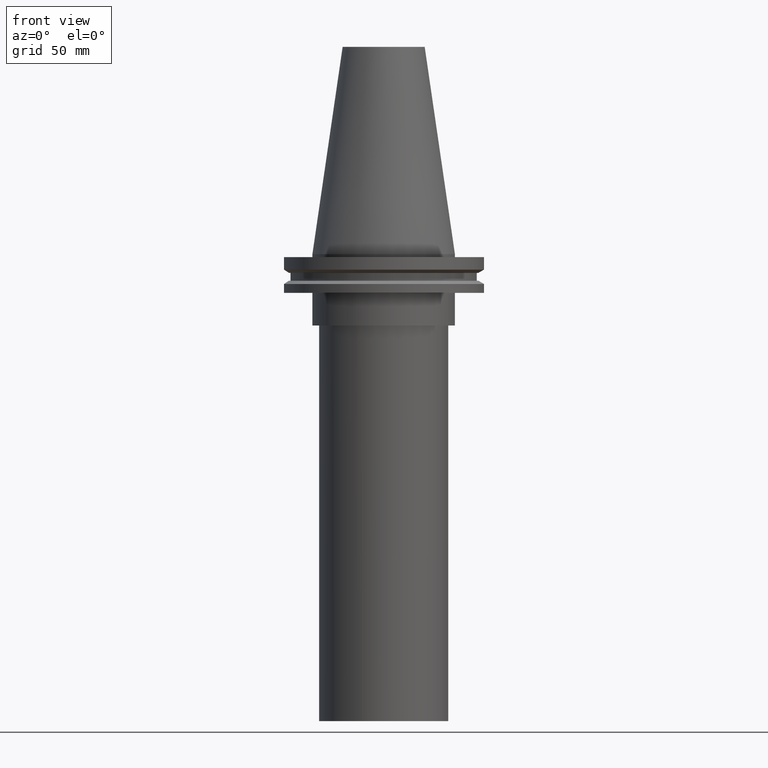
[diagram: clean part render]
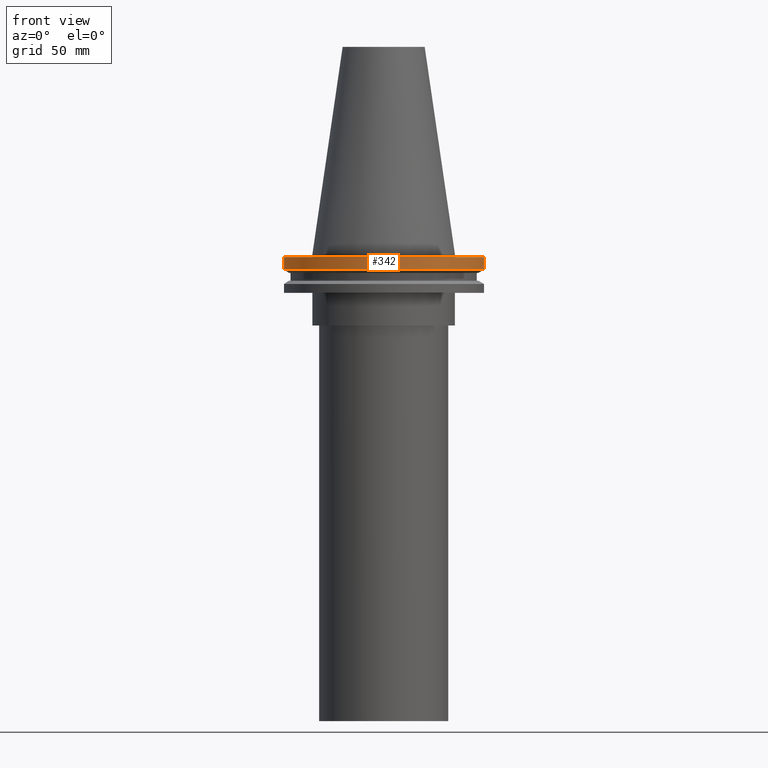
[diagram: same view with one face highlighted and labeled with its STEP entity id]
A machine part, front view. The second image highlights one B-rep face of the part: STEP entity #342.
In plain terms, the highlighted cylindrical surface (bore or boss wall) has radius 49.215 mm, axis along (-0, -0, 1).
Its self-contained STEP definition (entity closure, byte-faithful):
#26 = CARTESIAN_POINT ( 'NONE',  ( 0.000000000000000000, 0.000000000000000000, 101.5999999999999943 ) ) ;
#56 = DIRECTION ( 'NONE',  ( 1.000000000000000000, 0.000000000000000000, 0.000000000000000000 ) ) ;
#62 = DIRECTION ( 'NONE',  ( 1.000000000000000000, 0.000000000000000000, 0.000000000000000000 ) ) ;
#65 = AXIS2_PLACEMENT_3D ( 'NONE', #383, #376, #343 ) ;
#69 = VERTEX_POINT ( 'NONE', #209 ) ;
#82 = DIRECTION ( 'NONE',  ( -0.000000000000000000, -0.000000000000000000, 1.000000000000000000 ) ) ;
#94 = FACE_OUTER_BOUND ( 'NONE', #277, .T. ) ;
#113 = ORIENTED_EDGE ( 'NONE', *, *, #145, .F. ) ;
#122 = AXIS2_PLACEMENT_3D ( 'NONE', #26, #125, #62 ) ;
#125 = DIRECTION ( 'NONE',  ( -0.000000000000000000, -0.000000000000000000, 1.000000000000000000 ) ) ;
#135 = CARTESIAN_POINT ( 'NONE',  ( 0.000000000000000000, 0.000000000000000000, -7.602389855251287187 ) ) ;
#145 = EDGE_CURVE ( 'NONE', #239, #239, #243, .T. ) ;
#174 = ORIENTED_EDGE ( 'NONE', *, *, #211, .T. ) ;
#209 = CARTESIAN_POINT ( 'NONE',  ( 49.21500000000000341, 0.000000000000000000, -7.602389855251287187 ) ) ;
#210 = AXIS2_PLACEMENT_3D ( 'NONE', #135, #82, #56 ) ;
#211 = EDGE_CURVE ( 'NONE', #69, #69, #301, .T. ) ;
#239 = VERTEX_POINT ( 'NONE', #392 ) ;
#243 = CIRCLE ( 'NONE', #65, 49.21499999999999631 ) ;
#277 = EDGE_LOOP ( 'NONE', ( #174 ) ) ;
#301 = CIRCLE ( 'NONE', #210, 49.21500000000000341 ) ;
#319 = EDGE_LOOP ( 'NONE', ( #113 ) ) ;
#323 = FACE_OUTER_BOUND ( 'NONE', #319, .T. ) ;
#342 = ADVANCED_FACE ( 'NONE', ( #323, #94 ), #368, .T. ) ;
#343 = DIRECTION ( 'NONE',  ( 1.000000000000000000, 0.000000000000000000, 0.000000000000000000 ) ) ;
#368 = CYLINDRICAL_SURFACE ( 'NONE', #122, 49.21499999999999631 ) ;
#376 = DIRECTION ( 'NONE',  ( -0.000000000000000000, -0.000000000000000000, 1.000000000000000000 ) ) ;
#383 = CARTESIAN_POINT ( 'NONE',  ( 0.000000000000000000, 0.000000000000000000, -1.499999999999987566 ) ) ;
#392 = CARTESIAN_POINT ( 'NONE',  ( 49.21499999999999631, 0.000000000000000000, -1.499999999999987566 ) ) ;